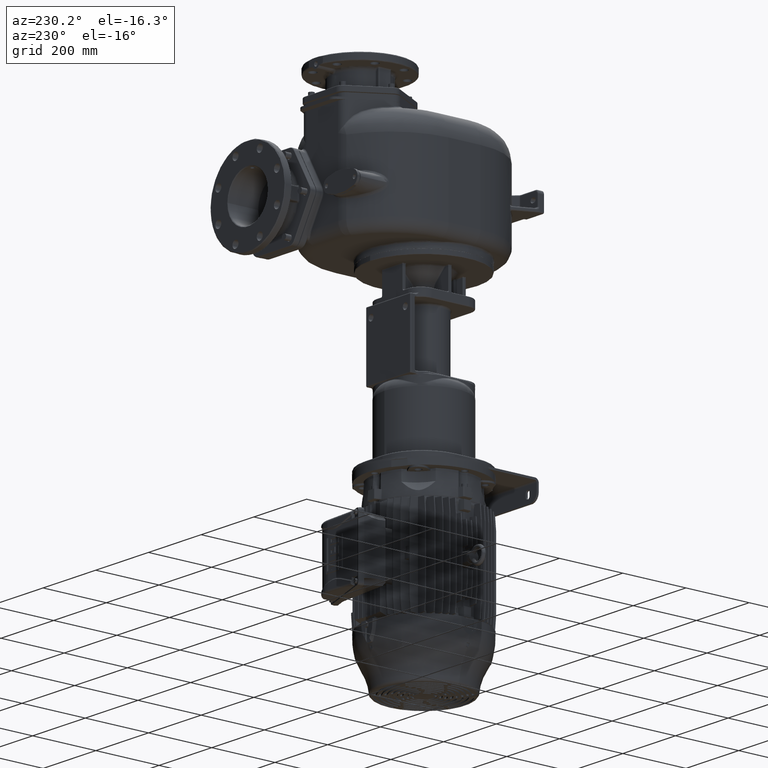
[diagram: clean part render]
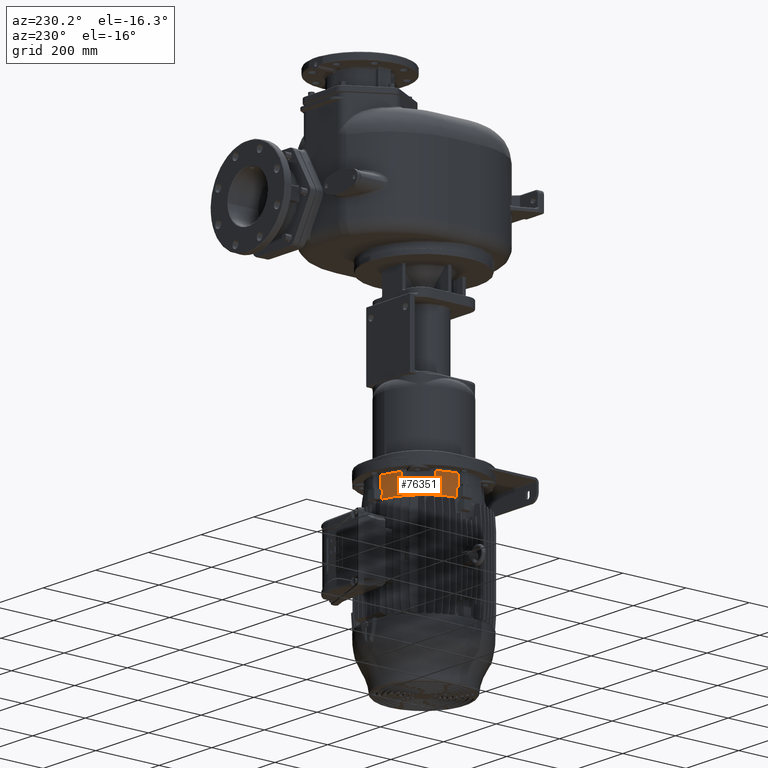
[diagram: same view with one face highlighted and labeled with its STEP entity id]
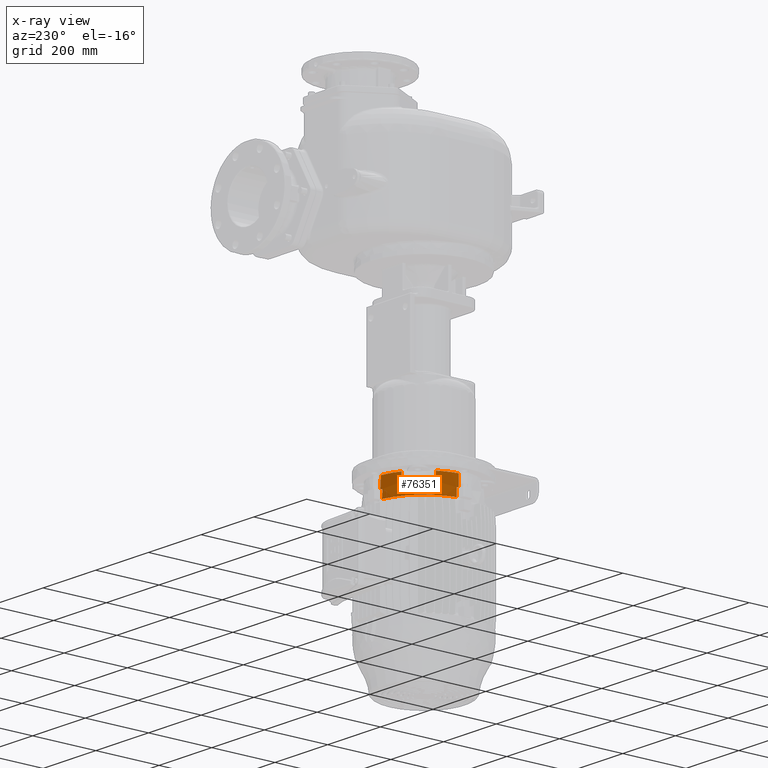
[diagram: x-ray of the same camera — body ghosted, the highlighted face saturated]
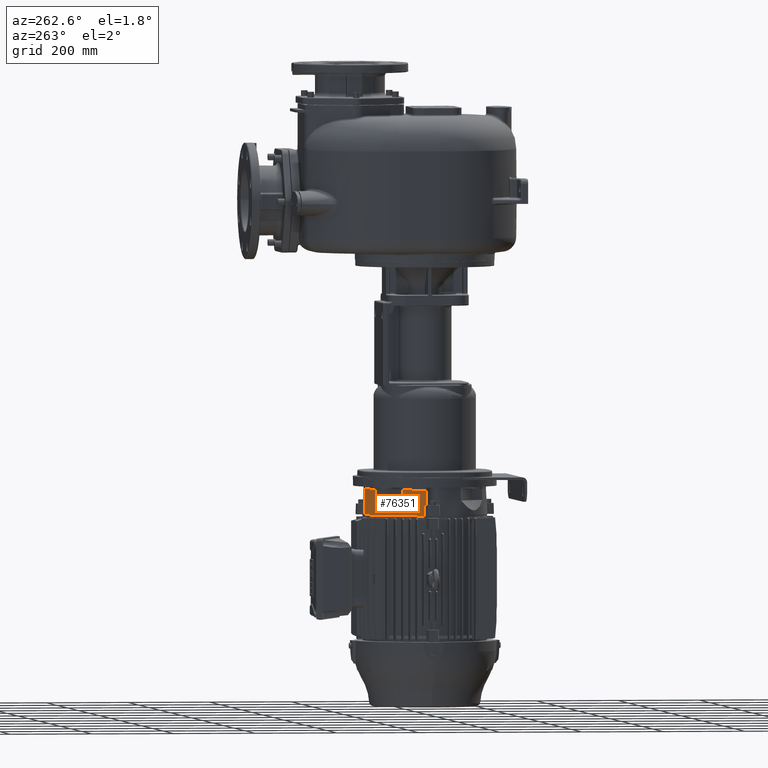
[diagram: same view with one face highlighted and labeled with its STEP entity id]
A machine part, auxiliary view. The second image highlights one B-rep face of the part: STEP entity #76351.
The next image is the same camera in x-ray: the body ghosted, the highlighted face saturated — about 0% of this face is hidden behind the body in this view.
A second angle (auxiliary view) of the same face is appended — the face is thin or edge-on in the first view.
In plain terms, the highlighted conical surface has half-angle 3 deg.
Its self-contained STEP definition (entity closure, byte-faithful):
#740=CARTESIAN_POINT('',(0.E0,2.29E2,-7.674E2));
#741=DIRECTION('',(0.E0,0.E0,-1.E0));
#742=DIRECTION('',(-1.405915475826E-1,9.900676829128E-1,0.E0));
#743=AXIS2_PLACEMENT_3D('',#740,#741,#742);
#1522=CARTESIAN_POINT('',(0.E0,2.29E2,-7.3095E2));
#1523=DIRECTION('',(0.E0,0.E0,1.E0));
#1524=DIRECTION('',(-8.780889241021E-1,4.784974831379E-1,0.E0));
#1525=AXIS2_PLACEMENT_3D('',#1522,#1523,#1524);
#15459=CARTESIAN_POINT('',(0.E0,2.29E2,-7.934E2));
#15460=DIRECTION('',(0.E0,0.E0,1.E0));
#15461=DIRECTION('',(-1.416000613322E-1,9.899239479024E-1,0.E0));
#15462=AXIS2_PLACEMENT_3D('',#15459,#15460,#15461);
#15464=CARTESIAN_POINT('',(-2.117834481402E1,3.781412189316E2,
-7.673999977876E2));
#15465=CARTESIAN_POINT('',(-2.121640292863E1,3.782877060193E2,
-7.702695580589E2));
#15466=CARTESIAN_POINT('',(-2.129269891970E1,3.785813778515E2,
-7.760215539848E2));
#15467=CARTESIAN_POINT('',(-2.140764797464E1,3.790237618626E2,
-7.846877791330E2));
#15468=CARTESIAN_POINT('',(-2.148462822330E1,3.793199790869E2,
-7.904915873190E2));
#15469=CARTESIAN_POINT('',(-2.152320926591E1,3.794684397521E2,
-7.933999983519E2));
#15471=CARTESIAN_POINT('',(-1.504684397018E2,2.505232092587E2,
-7.933999983466E2));
#15472=CARTESIAN_POINT('',(-1.503199790359E2,2.504846282161E2,
-7.904915873044E2));
#15473=CARTESIAN_POINT('',(-1.500237618914E2,2.504076479788E2,
-7.846877790842E2));
#15474=CARTESIAN_POINT('',(-1.495813778096E2,2.502926989155E2,
-7.760215539930E2));
#15475=CARTESIAN_POINT('',(-1.492877060866E2,2.502164029381E2,
-7.702695580580E2));
#15476=CARTESIAN_POINT('',(-1.491412189990E2,2.501783448237E2,
-7.673999977949E2));
#15552=CARTESIAN_POINT('',(-1.520266515202E1,3.788682907414E2,-7.674E2));
#15553=CARTESIAN_POINT('',(-1.506683292745E1,3.786656294826E2,
-7.632911628944E2));
#15554=CARTESIAN_POINT('',(-1.479607758795E1,3.782620181496E2,
-7.551127225313E2));
#15555=CARTESIAN_POINT('',(-1.439270357908E1,3.776617749070E2,
-7.429634884008E2));
#15556=CARTESIAN_POINT('',(-1.412558388176E1,3.772649932028E2,
-7.349414989354E2));
#15557=CARTESIAN_POINT('',(-1.399247842907E1,3.770674541887E2,-7.3095E2));
#15563=CARTESIAN_POINT('',(0.E0,2.29E2,-7.3095E2));
#15564=DIRECTION('',(0.E0,0.E0,1.E0));
#15565=DIRECTION('',(-9.408154406971E-2,9.955644946790E-1,0.E0));
#15566=AXIS2_PLACEMENT_3D('',#15563,#15564,#15565);
#15883=CARTESIAN_POINT('',(-1.315538666579E2,3.013009625095E2,
-7.573898429615E2));
#15884=CARTESIAN_POINT('',(-1.314487080294E2,3.011757760507E2,
-7.544808688657E2));
#15885=CARTESIAN_POINT('',(-1.312375205699E2,3.009247540500E2,
-7.486437339712E2));
#15886=CARTESIAN_POINT('',(-1.309181318699E2,3.005462968178E2,
-7.398308013251E2));
#15887=CARTESIAN_POINT('',(-1.307034378359E2,3.002926868095E2,
-7.339166993821E2));
#15888=CARTESIAN_POINT('',(-1.305956492402E2,3.001655593812E2,-7.3095E2));
#15890=CARTESIAN_POINT('',(-7.116555938124E1,3.595956492402E2,-7.3095E2));
#15891=CARTESIAN_POINT('',(-7.129268681164E1,3.597034378377E2,
-7.339166994329E2));
#15892=CARTESIAN_POINT('',(-7.154629682285E1,3.599181318742E2,
-7.398308014435E2));
#15893=CARTESIAN_POINT('',(-7.192475405506E1,3.602375205741E2,
-7.486437340891E2));
#15894=CARTESIAN_POINT('',(-7.217577605285E1,3.604487080313E2,
-7.544808689163E2));
#15895=CARTESIAN_POINT('',(-7.230096250948E1,3.605538666579E2,
-7.573898429615E2));
#15902=CARTESIAN_POINT('',(-7.230096250948E1,3.605538666579E2,
-7.573898429615E2));
#15903=CARTESIAN_POINT('',(-7.265070422991E1,3.603852649372E2,
-7.577847106357E2));
#15904=CARTESIAN_POINT('',(-7.334001532466E1,3.600492372395E2,
-7.585578936763E2));
#15905=CARTESIAN_POINT('',(-7.434444372399E1,3.595490148748E2,
-7.596696866475E2));
#15906=CARTESIAN_POINT('',(-7.531669183425E1,3.590547394823E2,
-7.607312741416E2));
#15907=CARTESIAN_POINT('',(-7.626071256528E1,3.585651937204E2,
-7.617477066059E2));
#15908=CARTESIAN_POINT('',(-7.717944696281E1,3.580795104996E2,
-7.627227422677E2));
#15909=CARTESIAN_POINT('',(-7.807518653583E1,3.575970650442E2,
-7.636593423584E2));
#15910=CARTESIAN_POINT('',(-7.895061016272E1,3.571169194073E2,
-7.645607501006E2));
#15911=CARTESIAN_POINT('',(-7.980587064021E1,3.566394454365E2,
-7.654275213162E2));
#15912=CARTESIAN_POINT('',(-8.063951457503E1,3.561659402581E2,
-7.662586665033E2));
#15913=CARTESIAN_POINT('',(-8.145244422998E1,3.556963911896E2,
-7.670556297167E2));
#15914=CARTESIAN_POINT('',(-8.224689670805E1,3.552299475984E2,
-7.678210827542E2));
#15915=CARTESIAN_POINT('',(-8.302324347462E1,3.547667950799E2,
-7.685558263888E2));
#15916=CARTESIAN_POINT('',(-8.378244530204E1,3.543067498132E2,
-7.692612156239E2));
#15917=CARTESIAN_POINT('',(-8.452525863218E1,3.538497156820E2,
-7.699383764031E2));
#15918=CARTESIAN_POINT('',(-8.525241864299E1,3.533955832089E2,
-7.705883907879E2));
#15919=CARTESIAN_POINT('',(-8.596462739377E1,3.529442368161E2,
-7.712122836440E2));
#15920=CARTESIAN_POINT('',(-8.666254398026E1,3.524955635765E2,
-7.718110163900E2));
#15921=CARTESIAN_POINT('',(-8.734679875798E1,3.520494457764E2,
-7.723855003122E2));
#15922=CARTESIAN_POINT('',(-8.801797250789E1,3.516057769688E2,
-7.729365820020E2));
#15923=CARTESIAN_POINT('',(-8.867668493534E1,3.511644030912E2,
-7.734651132118E2));
#15924=CARTESIAN_POINT('',(-8.932329357200E1,3.507253299893E2,
-7.739717196175E2));
#15925=CARTESIAN_POINT('',(-8.995876876943E1,3.502881248843E2,
-7.744574753601E2));
#15926=CARTESIAN_POINT('',(-9.058279539489E1,3.498532210547E2,
-7.749224475017E2));
#15927=CARTESIAN_POINT('',(-9.119542486654E1,3.494208111437E2,
-7.753670225984E2));
#15928=CARTESIAN_POINT('',(-9.179836523120E1,3.489898937963E2,
-7.757927493019E2));
#15929=CARTESIAN_POINT('',(-9.239269078023E1,3.485598604058E2,
-7.762006073478E2));
#15930=CARTESIAN_POINT('',(-9.297752806661E1,3.481315067549E2,
-7.765902393206E2));
#15931=CARTESIAN_POINT('',(-9.355351846635E1,3.477045346100E2,
-7.769623424937E2));
#15932=CARTESIAN_POINT('',(-9.412105472113E1,3.472788068481E2,
-7.773174108135E2));
#15933=CARTESIAN_POINT('',(-9.468044106665E1,3.468542431885E2,
-7.776558701467E2));
#15934=CARTESIAN_POINT('',(-9.523204563248E1,3.464307039754E2,
-7.779781685862E2));
#15935=CARTESIAN_POINT('',(-9.577618191774E1,3.460080802797E2,
-7.782847042922E2));
#15936=CARTESIAN_POINT('',(-9.631316671205E1,3.455862507045E2,
-7.785758616504E2));
#15937=CARTESIAN_POINT('',(-9.684329597681E1,3.451651003200E2,
-7.788519975345E2));
#15938=CARTESIAN_POINT('',(-9.736685913386E1,3.447445101116E2,
-7.791134500672E2));
#15939=CARTESIAN_POINT('',(-9.788413397190E1,3.443243613320E2,
-7.793605361592E2));
#15940=CARTESIAN_POINT('',(-9.839538799269E1,3.439045348902E2,
-7.795935528151E2));
#15941=CARTESIAN_POINT('',(-9.890087858400E1,3.434849116151E2,
-7.798127777369E2));
#15942=CARTESIAN_POINT('',(-9.940085539549E1,3.430653706354E2,
-7.800184707884E2));
#15943=CARTESIAN_POINT('',(-9.989555565453E1,3.426457936703E2,
-7.802108725622E2));
#15944=CARTESIAN_POINT('',(-1.003852108156E2,3.422260598057E2,
-7.803902076368E2));
#15945=CARTESIAN_POINT('',(-1.008700455409E2,3.418060465522E2,
-7.805566843291E2));
#15946=CARTESIAN_POINT('',(-1.013502770523E2,3.413856306572E2,
-7.807104947953E2));
#15947=CARTESIAN_POINT('',(-1.018261156758E2,3.409646878824E2,
-7.808518155659E2));
#15948=CARTESIAN_POINT('',(-1.022977658845E2,3.405430923010E2,
-7.809808081572E2));
#15949=CARTESIAN_POINT('',(-1.027654257750E2,3.401207169365E2,
-7.810976191322E2));
#15950=CARTESIAN_POINT('',(-1.032292836675E2,3.396974371100E2,
-7.812023797497E2));
#15951=CARTESIAN_POINT('',(-1.036895261376E2,3.392731233503E2,
-7.812952082057E2));
#15952=CARTESIAN_POINT('',(-1.041463331197E2,3.388476459507E2,
-7.813762085920E2));
#15953=CARTESIAN_POINT('',(-1.045998825881E2,3.384208707551E2,
-7.814454719582E2));
#15954=CARTESIAN_POINT('',(-1.050503462617E2,3.379926632337E2,
-7.815030756175E2));
#15955=CARTESIAN_POINT('',(-1.054978921162E2,3.375628862512E2,
-7.815490837673E2));
#15956=CARTESIAN_POINT('',(-1.059426823423E2,3.371314021050E2,
-7.815835473910E2));
#15957=CARTESIAN_POINT('',(-1.063848745612E2,3.366980715055E2,
-7.816065046961E2));
#15958=CARTESIAN_POINT('',(-1.068246259534E2,3.362627495432E2,
-7.816179813115E2));
#15959=CARTESIAN_POINT('',(-1.072620892691E2,3.358252895758E2,
-7.816179899872E2));
#15960=CARTESIAN_POINT('',(-1.076974146615E2,3.353855414504E2,
-7.816065307219E2));
#15961=CARTESIAN_POINT('',(-1.081307489024E2,3.349433522835E2,
-7.815835907507E2));
#15962=CARTESIAN_POINT('',(-1.085622365310E2,3.344985652713E2,
-7.815491444570E2));
#15963=CARTESIAN_POINT('',(-1.089920162997E2,3.340510233663E2,
-7.815031537229E2));
#15964=CARTESIAN_POINT('',(-1.094202266240E2,3.336005636472E2,
-7.814455675143E2));
#15965=CARTESIAN_POINT('',(-1.098470038436E2,3.331470189905E2,
-7.813763217753E2));
#15966=CARTESIAN_POINT('',(-1.102724830295E2,3.326902171216E2,
-7.812953391503E2));
#15967=CARTESIAN_POINT('',(-1.106967973183E2,3.322299811871E2,
-7.812025288467E2));
#15968=CARTESIAN_POINT('',(-1.111200771820E2,3.317661304660E2,
-7.810977867113E2));
#15969=CARTESIAN_POINT('',(-1.115424539802E2,3.312984762968E2,
-7.809809940323E2));
#15970=CARTESIAN_POINT('',(-1.119640516374E2,3.308268311600E2,
-7.808520196663E2));
#15971=CARTESIAN_POINT('',(-1.123849971340E2,3.303509969348E2,
-7.807107169925E2));
#15972=CARTESIAN_POINT('',(-1.128054149465E2,3.298707707959E2,
-7.805569249968E2));
#15973=CARTESIAN_POINT('',(-1.132254300179E2,3.293859416368E2,
-7.803904669477E2));
#15974=CARTESIAN_POINT('',(-1.136451653735E2,3.288962925070E2,
-7.802111507952E2));
#15975=CARTESIAN_POINT('',(-1.140647434152E2,3.284015988666E2,
-7.800187683040E2));
#15976=CARTESIAN_POINT('',(-1.144842849607E2,3.279016293980E2,
-7.798130949915E2));
#15977=CARTESIAN_POINT('',(-1.149039083279E2,3.273961468547E2,
-7.795938903017E2));
#15978=CARTESIAN_POINT('',(-1.153237343319E2,3.268849016824E2,
-7.793608944614E2));
#15979=CARTESIAN_POINT('',(-1.157438824541E2,3.263676361378E2,
-7.791138296427E2));
#15980=CARTESIAN_POINT('',(-1.161644715933E2,3.258440829763E2,
-7.788523989960E2));
#15981=CARTESIAN_POINT('',(-1.165856204348E2,3.253139645119E2,
-7.785762857020E2));
#15982=CARTESIAN_POINT('',(-1.170074480751E2,3.247769912613E2,
-7.782851516746E2));
#15983=CARTESIAN_POINT('',(-1.174300705680E2,3.242328658036E2,
-7.779786391848E2));
#15984=CARTESIAN_POINT('',(-1.178536057014E2,3.236812761170E2,
-7.776563667431E2));
#15985=CARTESIAN_POINT('',(-1.182781721235E2,3.231218958834E2,
-7.773179283962E2));
#15986=CARTESIAN_POINT('',(-1.187038877703E2,3.225543857837E2,
-7.769628938176E2));
#15987=CARTESIAN_POINT('',(-1.191308704544E2,3.219783919347E2,
-7.765908067121E2));
#15988=CARTESIAN_POINT('',(-1.195592378763E2,3.213935449928E2,
-7.762011835353E2));
#15989=CARTESIAN_POINT('',(-1.199891081977E2,3.207994583748E2,
-7.757935115050E2));
#15990=CARTESIAN_POINT('',(-1.204205971124E2,3.201957313027E2,
-7.753672499852E2));
#15991=CARTESIAN_POINT('',(-1.208538229339E2,3.195819406111E2,
-7.749218239895E2));
#15992=CARTESIAN_POINT('',(-1.212889038546E2,3.189576431787E2,
-7.744566247680E2));
#15993=CARTESIAN_POINT('',(-1.217259581589E2,3.183223742506E2,
-7.739710076440E2));
#15994=CARTESIAN_POINT('',(-1.221651035230E2,3.176756469263E2,
-7.734642906229E2));
#15995=CARTESIAN_POINT('',(-1.226064571292E2,3.170169503757E2,
-7.729357520291E2));
#15996=CARTESIAN_POINT('',(-1.230501363938E2,3.163457469032E2,
-7.723846270275E2));
#15997=CARTESIAN_POINT('',(-1.234962565436E2,3.156614736332E2,
-7.718101078949E2));
#15998=CARTESIAN_POINT('',(-1.239449340427E2,3.149635351158E2,
-7.712113366972E2));
#15999=CARTESIAN_POINT('',(-1.243962847565E2,3.142513035629E2,
-7.705874039749E2));
#16000=CARTESIAN_POINT('',(-1.248504218913E2,3.135241194416E2,
-7.699373479689E2));
#16001=CARTESIAN_POINT('',(-1.253074603384E2,3.127812817125E2,
-7.692601446641E2));
#16002=CARTESIAN_POINT('',(-1.257675104403E2,3.120220537974E2,
-7.685547107644E2));
#16003=CARTESIAN_POINT('',(-1.262306693548E2,3.112456771962E2,
-7.678199180787E2));
#16004=CARTESIAN_POINT('',(-1.266971092133E2,3.104512113943E2,
-7.670544315327E2));
#16005=CARTESIAN_POINT('',(-1.271666914072E2,3.096382036411E2,
-7.662573707527E2));
#16006=CARTESIAN_POINT('',(-1.276401518049E2,3.088046141008E2,
-7.654262560213E2));
#16007=CARTESIAN_POINT('',(-1.281171987653E2,3.079500991072E2,
-7.645602222790E2));
#16008=CARTESIAN_POINT('',(-1.285967579378E2,3.070757461945E2,
-7.636599184361E2));
#16009=CARTESIAN_POINT('',(-1.290789406108E2,3.061805142490E2,
-7.627238661162E2));
#16010=CARTESIAN_POINT('',(-1.295647118919E2,3.052616346871E2,
-7.617486939587E2));
#16011=CARTESIAN_POINT('',(-1.300544361681E2,3.043172851941E2,
-7.607319195915E2));
#16012=CARTESIAN_POINT('',(-1.305489164150E2,3.033446415859E2,
-7.596699057871E2));
#16013=CARTESIAN_POINT('',(-1.310492341875E2,3.023400222401E2,
-7.585579018746E2));
#16014=CARTESIAN_POINT('',(-1.313852729434E2,3.016506876222E2,
-7.577846918852E2));
#16015=CARTESIAN_POINT('',(-1.315538666579E2,3.013009625095E2,
-7.573898429615E2));
#16017=CARTESIAN_POINT('',(-1.480674541887E2,2.429924784291E2,-7.3095E2));
#16018=CARTESIAN_POINT('',(-1.482649932146E2,2.431255838897E2,
-7.349414991750E2));
#16019=CARTESIAN_POINT('',(-1.486617749347E2,2.433927035977E2,
-7.429634889598E2));
#16020=CARTESIAN_POINT('',(-1.492620181773E2,2.437960776066E2,
-7.551127230926E2));
#16021=CARTESIAN_POINT('',(-1.496656294945E2,2.440668329354E2,
-7.632911631350E2));
#16022=CARTESIAN_POINT('',(-1.498682907414E2,2.442026651520E2,-7.674E2));
#16028=CARTESIAN_POINT('',(0.E0,2.29E2,-7.674E2));
#16029=DIRECTION('',(0.E0,0.E0,-1.E0));
#16030=DIRECTION('',(-9.948943156958E-1,1.009222502529E-1,0.E0));
#16031=AXIS2_PLACEMENT_3D('',#16028,#16029,#16030);
#59149=CARTESIAN_POINT('',(-2.152320931007E1,3.794684400829E2,-7.934E2));
#59151=VERTEX_POINT('',#59149);
#59168=CARTESIAN_POINT('',(-1.315538666579E2,3.013009625095E2,
-7.573898429615E2));
#59169=CARTESIAN_POINT('',(-7.230096250948E1,3.605538666579E2,
-7.573898429615E2));
#59170=VERTEX_POINT('',#59168);
#59171=VERTEX_POINT('',#59169);
#59187=VERTEX_POINT('',#15471);
#59188=VERTEX_POINT('',#15476);
#59189=VERTEX_POINT('',#15464);
#59194=CARTESIAN_POINT('',(-1.480674541887E2,2.429924784291E2,-7.3095E2));
#59195=VERTEX_POINT('',#59194);
#59196=VERTEX_POINT('',#16022);
#59272=CARTESIAN_POINT('',(-1.305956492402E2,3.001655593812E2,-7.3095E2));
#59273=CARTESIAN_POINT('',(-7.116555938124E1,3.595956492402E2,-7.3095E2));
#59274=VERTEX_POINT('',#59272);
#59275=VERTEX_POINT('',#59273);
#59282=CARTESIAN_POINT('',(-1.399247842907E1,3.770674541887E2,-7.3095E2));
#59283=VERTEX_POINT('',#59282);
#59284=VERTEX_POINT('',#15552);
#76323=CARTESIAN_POINT('',(0.E0,2.29E2,-7.62175E2));
#76324=DIRECTION('',(0.E0,0.E0,-1.E0));
#76325=DIRECTION('',(0.E0,1.E0,0.E0));
#76326=AXIS2_PLACEMENT_3D('',#76323,#76324,#76325);
#76327=CONICAL_SURFACE('',#76326,1.503635670919E2,3.E0);
#76328=ORIENTED_EDGE('',*,*,#76314,.F.);
#76330=ORIENTED_EDGE('',*,*,#76329,.F.);
#76331=ORIENTED_EDGE('',*,*,#62766,.T.);
#76333=ORIENTED_EDGE('',*,*,#76332,.T.);
#76335=ORIENTED_EDGE('',*,*,#76334,.T.);
#76337=ORIENTED_EDGE('',*,*,#76336,.T.);
#76339=ORIENTED_EDGE('',*,*,#76338,.T.);
#76341=ORIENTED_EDGE('',*,*,#76340,.T.);
#76342=ORIENTED_EDGE('',*,*,#63422,.T.);
#76344=ORIENTED_EDGE('',*,*,#76343,.T.);
#76346=ORIENTED_EDGE('',*,*,#76345,.T.);
#76348=ORIENTED_EDGE('',*,*,#76347,.F.);
#76349=EDGE_LOOP('',(#76328,#76330,#76331,#76333,#76335,#76337,#76339,#76341,
#76342,#76344,#76346,#76348));
#76350=FACE_OUTER_BOUND('',#76349,.F.);
#76351=ADVANCED_FACE('',(#76350),#76327,.T.);
#744=CIRCLE('',#743,1.506373977386E2);
#1526=CIRCLE('',#1525,1.487271341838E2);
#15463=CIRCLE('',#15462,1.52E2);
#15470=B_SPLINE_CURVE_WITH_KNOTS('',3,(#15464,#15465,#15466,#15467,#15468,
#15469),.UNSPECIFIED.,.F.,.F.,(4,1,1,4),(0.E0,3.333333333333E-1,
6.666666666667E-1,1.E0),.UNSPECIFIED.);
#15477=B_SPLINE_CURVE_WITH_KNOTS('',3,(#15471,#15472,#15473,#15474,#15475,
#15476),.UNSPECIFIED.,.F.,.F.,(4,1,1,4),(0.E0,3.333333333333E-1,
6.666666666667E-1,1.E0),.UNSPECIFIED.);
#15558=B_SPLINE_CURVE_WITH_KNOTS('',3,(#15552,#15553,#15554,#15555,#15556,
#15557),.UNSPECIFIED.,.F.,.F.,(4,1,1,4),(0.E0,3.333333333333E-1,
6.666666666667E-1,1.E0),.UNSPECIFIED.);
#15567=CIRCLE('',#15566,1.487271341838E2);
#15889=B_SPLINE_CURVE_WITH_KNOTS('',3,(#15883,#15884,#15885,#15886,#15887,
#15888),.UNSPECIFIED.,.F.,.F.,(4,1,1,4),(0.E0,3.333333333333E-1,
6.666666666667E-1,1.E0),.UNSPECIFIED.);
#15896=B_SPLINE_CURVE_WITH_KNOTS('',3,(#15890,#15891,#15892,#15893,#15894,
#15895),.UNSPECIFIED.,.F.,.F.,(4,1,1,4),(0.E0,3.333333333333E-1,
6.666666666667E-1,1.E0),.UNSPECIFIED.);
#16016=B_SPLINE_CURVE_WITH_KNOTS('',3,(#15902,#15903,#15904,#15905,#15906,
#15907,#15908,#15909,#15910,#15911,#15912,#15913,#15914,#15915,#15916,#15917,
#15918,#15919,#15920,#15921,#15922,#15923,#15924,#15925,#15926,#15927,#15928,
#15929,#15930,#15931,#15932,#15933,#15934,#15935,#15936,#15937,#15938,#15939,
#15940,#15941,#15942,#15943,#15944,#15945,#15946,#15947,#15948,#15949,#15950,
#15951,#15952,#15953,#15954,#15955,#15956,#15957,#15958,#15959,#15960,#15961,
#15962,#15963,#15964,#15965,#15966,#15967,#15968,#15969,#15970,#15971,#15972,
#15973,#15974,#15975,#15976,#15977,#15978,#15979,#15980,#15981,#15982,#15983,
#15984,#15985,#15986,#15987,#15988,#15989,#15990,#15991,#15992,#15993,#15994,
#15995,#15996,#15997,#15998,#15999,#16000,#16001,#16002,#16003,#16004,#16005,
#16006,#16007,#16008,#16009,#16010,#16011,#16012,#16013,#16014,#16015),
.UNSPECIFIED.,.F.,.F.,(4,1,1,1,1,1,1,1,1,1,1,1,1,1,1,1,1,1,1,1,1,1,1,1,1,1,1,1,
1,1,1,1,1,1,1,1,1,1,1,1,1,1,1,1,1,1,1,1,1,1,1,1,1,1,1,1,1,1,1,1,1,1,1,1,1,1,1,1,
1,1,1,1,1,1,1,1,1,1,1,1,1,1,1,1,1,1,1,1,1,1,1,1,1,1,1,1,1,1,1,1,1,1,1,1,1,1,1,1,
1,1,1,4),(0.E0,9.009009009009E-3,1.801801801802E-2,2.702702702703E-2,
3.603603603604E-2,4.504504504505E-2,5.405405405405E-2,6.306306306306E-2,
7.207207207207E-2,8.108108108108E-2,9.009009009009E-2,9.909909909910E-2,
1.081081081081E-1,1.171171171171E-1,1.261261261261E-1,1.351351351351E-1,
1.441441441441E-1,1.531531531532E-1,1.621621621622E-1,1.711711711712E-1,
1.801801801802E-1,1.891891891892E-1,1.981981981982E-1,2.072072072072E-1,
2.162162162162E-1,2.252252252252E-1,2.342342342342E-1,2.432432432432E-1,
2.522522522523E-1,2.612612612613E-1,2.702702702703E-1,2.792792792793E-1,
2.882882882883E-1,2.972972972973E-1,3.063063063063E-1,3.153153153153E-1,
3.243243243243E-1,3.333333333333E-1,3.423423423423E-1,3.513513513514E-1,
3.603603603604E-1,3.693693693694E-1,3.783783783784E-1,3.873873873874E-1,
3.963963963964E-1,4.054054054054E-1,4.144144144144E-1,4.234234234234E-1,
4.324324324324E-1,4.414414414414E-1,4.504504504505E-1,4.594594594595E-1,
4.684684684685E-1,4.774774774775E-1,4.864864864865E-1,4.954954954955E-1,
5.045045045045E-1,5.135135135135E-1,5.225225225225E-1,5.315315315315E-1,
5.405405405405E-1,5.495495495495E-1,5.585585585586E-1,5.675675675676E-1,
5.765765765766E-1,5.855855855856E-1,5.945945945946E-1,6.036036036036E-1,
6.126126126126E-1,6.216216216216E-1,6.306306306306E-1,6.396396396396E-1,
6.486486486486E-1,6.576576576577E-1,6.666666666667E-1,6.756756756757E-1,
6.846846846847E-1,6.936936936937E-1,7.027027027027E-1,7.117117117117E-1,
7.207207207207E-1,7.297297297297E-1,7.387387387387E-1,7.477477477477E-1,
7.567567567568E-1,7.657657657658E-1,7.747747747748E-1,7.837837837838E-1,
7.927927927928E-1,8.018018018018E-1,8.108108108108E-1,8.198198198198E-1,
8.288288288288E-1,8.378378378378E-1,8.468468468468E-1,8.558558558559E-1,
8.648648648649E-1,8.738738738739E-1,8.828828828829E-1,8.918918918919E-1,
9.009009009009E-1,9.099099099099E-1,9.189189189189E-1,9.279279279279E-1,
9.369369369369E-1,9.459459459459E-1,9.549549549550E-1,9.639639639640E-1,
9.729729729730E-1,9.819819819820E-1,9.909909909910E-1,1.E0),.UNSPECIFIED.);
#16023=B_SPLINE_CURVE_WITH_KNOTS('',3,(#16017,#16018,#16019,#16020,#16021,
#16022),.UNSPECIFIED.,.F.,.F.,(4,1,1,4),(0.E0,3.333333333333E-1,
6.666666666667E-1,1.E0),.UNSPECIFIED.);
#16032=CIRCLE('',#16031,1.506373977386E2);
#62766=EDGE_CURVE('',#59189,#59284,#744,.T.);
#63422=EDGE_CURVE('',#59274,#59195,#1526,.T.);
#76314=EDGE_CURVE('',#59151,#59187,#15463,.T.);
#76329=EDGE_CURVE('',#59189,#59151,#15470,.T.);
#76332=EDGE_CURVE('',#59284,#59283,#15558,.T.);
#76334=EDGE_CURVE('',#59283,#59275,#15567,.T.);
#76336=EDGE_CURVE('',#59275,#59171,#15896,.T.);
#76338=EDGE_CURVE('',#59171,#59170,#16016,.T.);
#76340=EDGE_CURVE('',#59170,#59274,#15889,.T.);
#76343=EDGE_CURVE('',#59195,#59196,#16023,.T.);
#76345=EDGE_CURVE('',#59196,#59188,#16032,.T.);
#76347=EDGE_CURVE('',#59187,#59188,#15477,.T.);